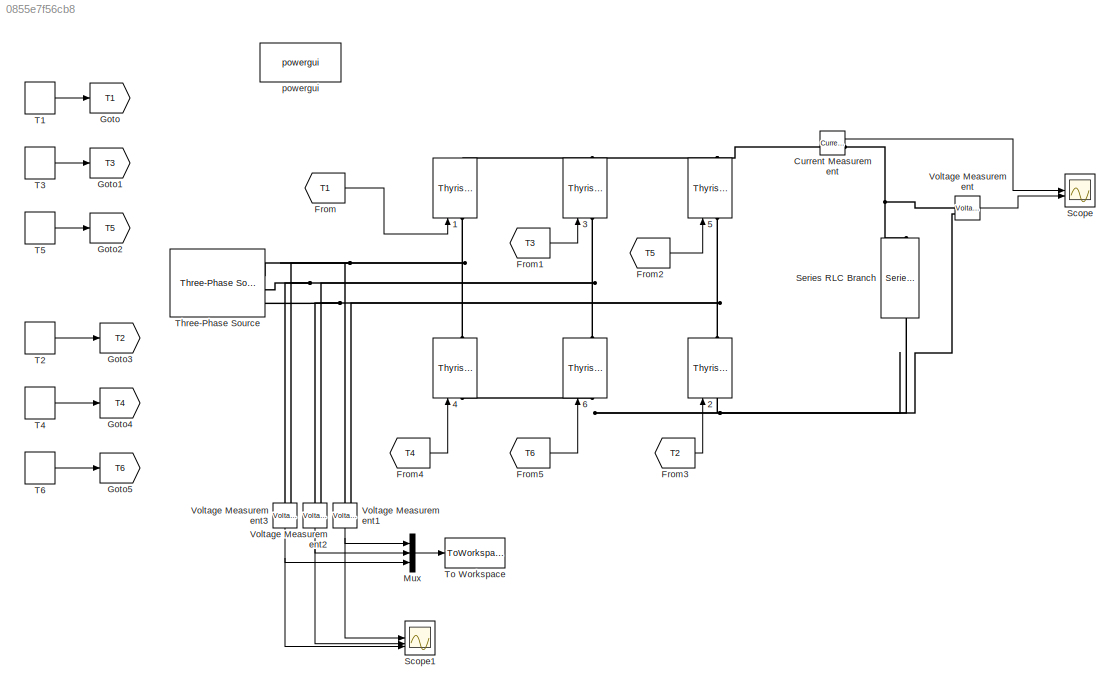
MODEL slx_0855e7f56cb8
KIND model
CONFIG AbsTol = auto
CONFIG EnableMultiTasking = off
CONFIG FixedStep = auto
CONFIG MaxStep = auto
CONFIG MinStep = auto
CONFIG RelTol = 1e-3
CONFIG SampleTimeConstraint = Unconstrained
CONFIG SolverName = VariableStepAuto
CONFIG StartTime = 0.0
CONFIG StopTime = 0.04
BLOCK [Reference] 1  REF=spsThyristorLib/Thyristor
  LibrarySourceBlock = sps_lib/Power Electronics/Thyristor
  NameLocation = right
  SourceBlock = spsThyristorLib/Thyristor
  SourceType = Thyristor
BLOCK [Reference] 2  REF=spsThyristorLib/Thyristor
  LibrarySourceBlock = sps_lib/Power Electronics/Thyristor
  NameLocation = right
  SourceBlock = spsThyristorLib/Thyristor
  SourceType = Thyristor
BLOCK [Reference] 3  REF=spsThyristorLib/Thyristor
  LibrarySourceBlock = sps_lib/Power Electronics/Thyristor
  NameLocation = right
  SourceBlock = spsThyristorLib/Thyristor
  SourceType = Thyristor
BLOCK [Reference] 4  REF=spsThyristorLib/Thyristor
  LibrarySourceBlock = sps_lib/Power Electronics/Thyristor
  NameLocation = right
  SourceBlock = spsThyristorLib/Thyristor
  SourceType = Thyristor
BLOCK [Reference] 5  REF=spsThyristorLib/Thyristor
  LibrarySourceBlock = sps_lib/Power Electronics/Thyristor
  NameLocation = right
  SourceBlock = spsThyristorLib/Thyristor
  SourceType = Thyristor
BLOCK [Reference] 6  REF=spsThyristorLib/Thyristor
  LibrarySourceBlock = sps_lib/Power Electronics/Thyristor
  NameLocation = right
  SourceBlock = spsThyristorLib/Thyristor
  SourceType = Thyristor
BLOCK [Reference] Current Measurement  REF=spsCurrentMeasurementLib/Current Measurement
  LibrarySourceBlock = sps_lib/Sensors and Measurements/Current Measurement
  SourceBlock = spsCurrentMeasurementLib/Current Measurement
  SourceType = Current Measurement
  UserDataPersistent = on
BLOCK [From] From
  GotoTag = T1
BLOCK [From] From1
  GotoTag = T3
BLOCK [From] From2
  GotoTag = T5
BLOCK [From] From3
  GotoTag = T2
BLOCK [From] From4
  GotoTag = T4
BLOCK [From] From5
  GotoTag = T6
BLOCK [Goto] Goto
  GotoTag = T1
BLOCK [Goto] Goto1
  GotoTag = T3
BLOCK [Goto] Goto2
  GotoTag = T5
BLOCK [Goto] Goto3
  GotoTag = T2
BLOCK [Goto] Goto4
  GotoTag = T4
BLOCK [Goto] Goto5
  GotoTag = T6
BLOCK [Mux] Mux
  DisplayOption = bar
  Inputs = 3
BLOCK [Scope] Scope
  Floating = off
  NumInputPorts = 2
  ScopeSpecificationString = Simulink.scopes.TimeScopeBlockCfg('CurrentConfiguration', extmgr.ConfigurationSet(extmgr.Configuration('Core','General UI',true),extmgr.Configuration('Core','Source UI',true),extmgr.Configuration('Sources','WiredSimulink',true),extmgr.Configuration('Visuals','Time Domain',true,'SerializedDisplays',{struct('MinYLimReal','-0.00349','MaxYLimReal','0.03142','YLabelReal','','MinYLimMag','0.00000','MaxY...<+2044ch>
BLOCK [Scope] Scope1
  Floating = off
  NumInputPorts = 3
  ScopeSpecificationString = Simulink.scopes.TimeScopeBlockCfg('CurrentConfiguration', extmgr.ConfigurationSet(extmgr.Configuration('Core','General UI',true,'FigureColor',[1 1 1]),extmgr.Configuration('Core','Source UI',true),extmgr.Configuration('Sources','WiredSimulink',true,'DataLoggingVariableName','ScopeData1'),extmgr.Configuration('Visuals','Time Domain',true,'SerializedDisplays',{struct('MinYLimReal','-206.49138','MaxY...<+2102ch>
BLOCK [Reference] Series RLC Branch  REF=spsSeriesRLCBranchLib/Series RLC Branch
  LibrarySourceBlock = sps_lib/Passives/Series RLC Branch
  NameLocation = left
  SourceBlock = spsSeriesRLCBranchLib/Series RLC Branch
  SourceType = Series RLC Branch
BLOCK [DiscretePulseGenerator] T1
  Period = 0.02
  PhaseDelay = 0.00334
  PulseType = Time based
  PulseWidth = 5
BLOCK [DiscretePulseGenerator] T2
  Period = 0.02
  PhaseDelay = 0.00668
  PulseType = Time based
  PulseWidth = 5
BLOCK [DiscretePulseGenerator] T3
  Period = 0.02
  PhaseDelay = 0.01
  PulseType = Time based
  PulseWidth = 5
BLOCK [DiscretePulseGenerator] T4
  Period = 0.02
  PhaseDelay = 0.00334+0.01
  PulseType = Time based
  PulseWidth = 5
BLOCK [DiscretePulseGenerator] T5
  Period = 0.02
  PhaseDelay = 0.01+0.00668
  PulseType = Time based
  PulseWidth = 5
BLOCK [DiscretePulseGenerator] T6
  Period = 0.02
  PulseType = Time based
  PulseWidth = 5
BLOCK [Reference] Three-Phase Source  REF=spsThreePhaseSourceLib/Three-Phase Source
  LibrarySourceBlock = sps_lib/Sources/Three-Phase Source
  SourceBlock = spsThreePhaseSourceLib/Three-Phase Source
  SourceType = Three-Phase Source
BLOCK [ToWorkspace] To Workspace
  MaxDataPoints = inf
  SampleTime = -1
  SaveFormat = Timeseries
  VariableName = simout
BLOCK [Reference] Voltage Measurement  REF=spsVoltageMeasurementLib/Voltage Measurement
  LibrarySourceBlock = sps_lib/Sensors and Measurements/Voltage Measurement
  SourceBlock = spsVoltageMeasurementLib/Voltage Measurement
  SourceType = Voltage Measurement
  UserDataPersistent = on
BLOCK [Reference] Voltage Measurement1  REF=spsVoltageMeasurementLib/Voltage Measurement
  LibrarySourceBlock = sps_lib/Sensors and Measurements/Voltage Measurement
  NameLocation = left
  SourceBlock = spsVoltageMeasurementLib/Voltage Measurement
  SourceType = Voltage Measurement
  UserDataPersistent = on
BLOCK [Reference] Voltage Measurement2  REF=spsVoltageMeasurementLib/Voltage Measurement
  LibrarySourceBlock = sps_lib/Sensors and Measurements/Voltage Measurement
  NameLocation = left
  SourceBlock = spsVoltageMeasurementLib/Voltage Measurement
  SourceType = Voltage Measurement
  UserDataPersistent = on
BLOCK [Reference] Voltage Measurement3  REF=spsVoltageMeasurementLib/Voltage Measurement
  LibrarySourceBlock = sps_lib/Sensors and Measurements/Voltage Measurement
  NameLocation = left
  SourceBlock = spsVoltageMeasurementLib/Voltage Measurement
  SourceType = Voltage Measurement
  UserDataPersistent = on
BLOCK [Reference] powergui  REF=sps_lib/powergui
  LibrarySourceBlock = sps_lib/powergui
  Priority = 1
  SourceBlock = sps_lib/powergui
  SourceType = PSB option menu block
LINE Current Measurement:1 -> Scope:1
LINE From1:1 -> 3:1
LINE From2:1 -> 5:1
LINE From3:1 -> 2:1
LINE From4:1 -> 4:1
LINE From5:1 -> 6:1
LINE From:1 -> 1:1
LINE Mux:1 -> To Workspace:1
LINE T1:1 -> Goto:1
LINE T2:1 -> Goto3:1
LINE T3:1 -> Goto1:1
LINE T4:1 -> Goto4:1
LINE T5:1 -> Goto2:1
LINE T6:1 -> Goto5:1
NET Voltage Measurement1:1 -> Mux:1, Scope1:1
NET Voltage Measurement2:1 -> Mux:2, Scope1:2
NET Voltage Measurement3:1 -> Mux:3, Scope1:3
LINE Voltage Measurement:1 -> Scope:2
PNET net1: 1:LConn1 -- 4:RConn1 -- Three-Phase Source:RConn1 -- Voltage Measurement1:LConn1 -- Voltage Measurement3:LConn2
PNET net2: 1:RConn1 -- 3:RConn1 -- 5:RConn1 -- Current Measurement:LConn1
PNET net3: 2:LConn1 -- 4:LConn1 -- 6:LConn1 -- Series RLC Branch:RConn1 -- Voltage Measurement:LConn2
PNET net4: 2:RConn1 -- 5:LConn1 -- Three-Phase Source:RConn3 -- Voltage Measurement1:LConn2 -- Voltage Measurement2:LConn1
PNET net5: 3:LConn1 -- 6:RConn1 -- Three-Phase Source:RConn2 -- Voltage Measurement2:LConn2 -- Voltage Measurement3:LConn1
PNET net6: Current Measurement:RConn1 -- Series RLC Branch:LConn1 -- Voltage Measurement:LConn1
note: NET lines group one-source signal fan-out (src -> all destinations, sorted); 1:1 wires keep LINE; PNET lines group multi-terminal physical nets as a canonical sorted terminal list (undirected conserving connections); 2-terminal nets keep the pairwise PLINE form
